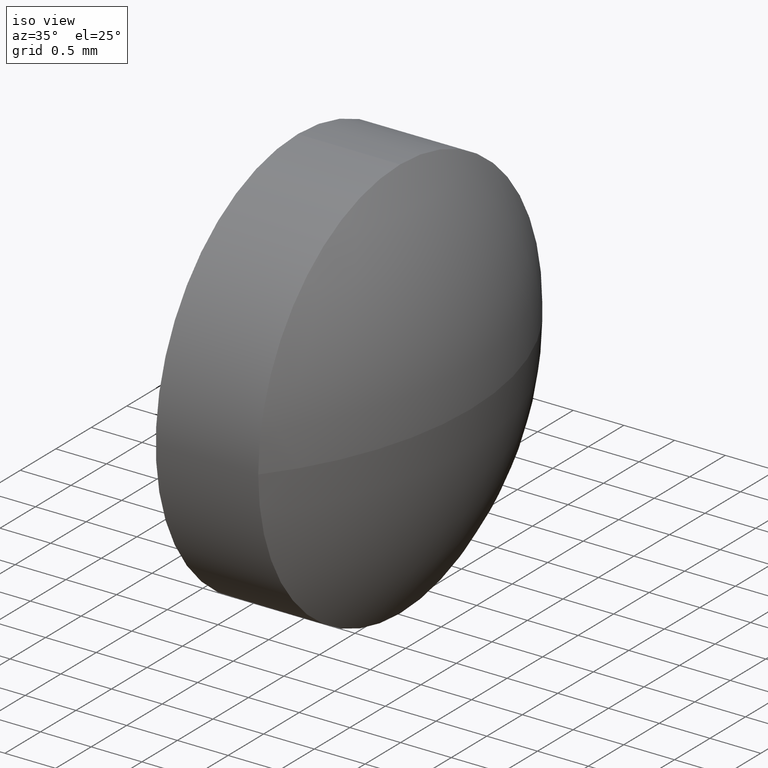
[diagram: clean part render]
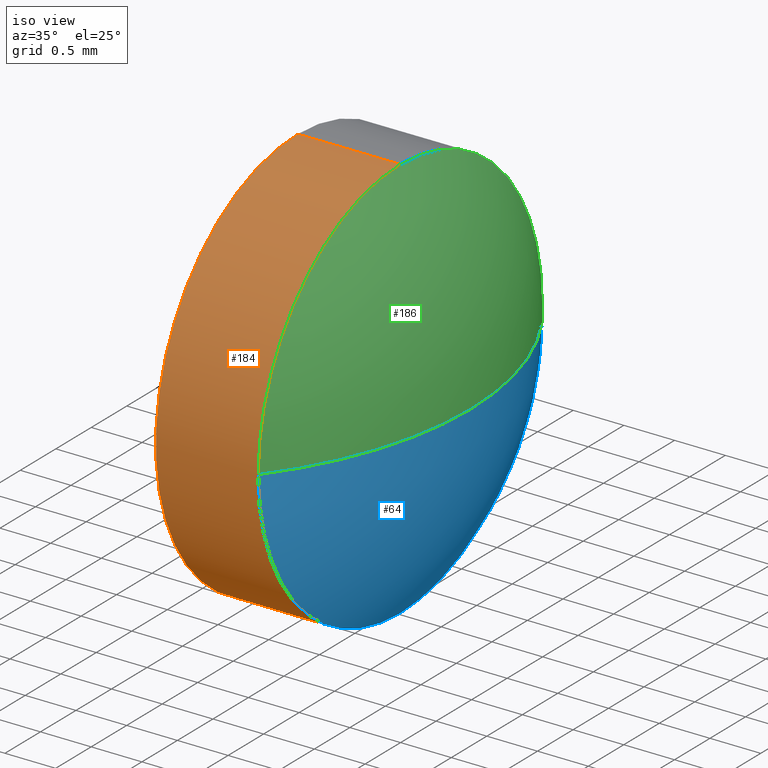
[diagram: same view with three faces highlighted in distinct colors, each labeled with its STEP entity id]
A machine part, iso view with three faces highlighted in distinct colors.
Their STEP definitions:

[orange] entity #184 — the highlighted cylindrical surface (partial cylindrical patch) has radius 2 mm, axis along (-1, -0, -0).
#3 = CYLINDRICAL_SURFACE ( 'NONE', #112, 2.000000000000001800 ) ;
#4 = DIRECTION ( 'NONE',  ( -1.000000000000000000, -0.0000000000000000000, -0.0000000000000000000 ) ) ;
#7 = DIRECTION ( 'NONE',  ( 0.0000000000000000000, 0.0000000000000000000, 1.000000000000000000 ) ) ;
#13 = VERTEX_POINT ( 'NONE', #70 ) ;
#14 = LINE ( 'NONE', #15, #163 ) ;
#15 = CARTESIAN_POINT ( 'NONE',  ( 504.7499832645277100, -76.13347349802080500, -2.000000000000001800 ) ) ;
#18 = EDGE_CURVE ( 'NONE', #13, #98, #126, .T. ) ;
#26 = AXIS2_PLACEMENT_3D ( 'NONE', #151, #127, #60 ) ;
#27 = CARTESIAN_POINT ( 'NONE',  ( 506.1898674013084500, -76.13347349802080500, 2.000000000000001800 ) ) ;
#31 = FACE_OUTER_BOUND ( 'NONE', #128, .T. ) ;
#42 = CIRCLE ( 'NONE', #26, 2.000000000000001800 ) ;
#45 = VERTEX_POINT ( 'NONE', #120 ) ;
#46 = CARTESIAN_POINT ( 'NONE',  ( 505.1798674013084000, -76.13347349802080500, -2.000000000000001800 ) ) ;
#48 = DIRECTION ( 'NONE',  ( -1.000000000000000000, -0.0000000000000000000, -0.0000000000000000000 ) ) ;
#49 = EDGE_CURVE ( 'NONE', #88, #160, #14, .T. ) ;
#51 = CARTESIAN_POINT ( 'NONE',  ( 504.7499832645277100, -76.13347349802080500, 0.0000000000000000000 ) ) ;
#60 = DIRECTION ( 'NONE',  ( 0.0000000000000000000, 0.0000000000000000000, 1.000000000000000000 ) ) ;
#65 = AXIS2_PLACEMENT_3D ( 'NONE', #162, #147, #174 ) ;
#70 = CARTESIAN_POINT ( 'NONE',  ( 506.1898674013084500, -78.13347349802080500, -2.449293598294705900E-016 ) ) ;
#73 = ORIENTED_EDGE ( 'NONE', *, *, #18, .T. ) ;
#76 = CARTESIAN_POINT ( 'NONE',  ( 505.1798674013084000, -76.13347349802080500, 0.0000000000000000000 ) ) ;
#79 = ORIENTED_EDGE ( 'NONE', *, *, #182, .T. ) ;
#82 = ORIENTED_EDGE ( 'NONE', *, *, #130, .T. ) ;
#88 = VERTEX_POINT ( 'NONE', #119 ) ;
#96 = DIRECTION ( 'NONE',  ( -1.000000000000000000, -0.0000000000000000000, -0.0000000000000000000 ) ) ;
#97 = DIRECTION ( 'NONE',  ( -1.000000000000000000, -0.0000000000000000000, -0.0000000000000000000 ) ) ;
#98 = VERTEX_POINT ( 'NONE', #27 ) ;
#108 = DIRECTION ( 'NONE',  ( 0.0000000000000000000, 0.0000000000000000000, 1.000000000000000000 ) ) ;
#110 = LINE ( 'NONE', #139, #113 ) ;
#112 = AXIS2_PLACEMENT_3D ( 'NONE', #51, #48, #7 ) ;
#113 = VECTOR ( 'NONE', #97, 1000.000000000000000 ) ;
#115 = CIRCLE ( 'NONE', #136, 2.000000000000001800 ) ;
#119 = CARTESIAN_POINT ( 'NONE',  ( 506.1898674013084500, -76.13347349802080500, -2.000000000000001800 ) ) ;
#120 = CARTESIAN_POINT ( 'NONE',  ( 505.1798674013084000, -76.13347349802080500, 2.000000000000001800 ) ) ;
#126 = CIRCLE ( 'NONE', #65, 2.000000000000001800 ) ;
#127 = DIRECTION ( 'NONE',  ( -1.000000000000000000, -0.0000000000000000000, -0.0000000000000000000 ) ) ;
#128 = EDGE_LOOP ( 'NONE', ( #156, #79, #73, #82, #142 ) ) ;
#130 = EDGE_CURVE ( 'NONE', #98, #45, #110, .T. ) ;
#136 = AXIS2_PLACEMENT_3D ( 'NONE', #76, #96, #108 ) ;
#139 = CARTESIAN_POINT ( 'NONE',  ( 504.7499832645277100, -76.13347349802080500, 2.000000000000001800 ) ) ;
#142 = ORIENTED_EDGE ( 'NONE', *, *, #180, .F. ) ;
#147 = DIRECTION ( 'NONE',  ( -1.000000000000000000, -0.0000000000000000000, -0.0000000000000000000 ) ) ;
#151 = CARTESIAN_POINT ( 'NONE',  ( 506.1898674013084500, -76.13347349802080500, 0.0000000000000000000 ) ) ;
#156 = ORIENTED_EDGE ( 'NONE', *, *, #49, .F. ) ;
#160 = VERTEX_POINT ( 'NONE', #46 ) ;
#162 = CARTESIAN_POINT ( 'NONE',  ( 506.1898674013084500, -76.13347349802080500, 0.0000000000000000000 ) ) ;
#163 = VECTOR ( 'NONE', #4, 1000.000000000000000 ) ;
#174 = DIRECTION ( 'NONE',  ( 0.0000000000000000000, 0.0000000000000000000, 1.000000000000000000 ) ) ;
#180 = EDGE_CURVE ( 'NONE', #160, #45, #115, .T. ) ;
#182 = EDGE_CURVE ( 'NONE', #88, #13, #42, .T. ) ;
#184 = ADVANCED_FACE ( 'NONE', ( #31 ), #3, .T. ) ;

[blue] entity #64 — the highlighted spherical surface has radius 3.2436 mm.
#1 = CIRCLE ( 'NONE', #6, 3.243550724637778200 ) ;
#2 = CIRCLE ( 'NONE', #41, 2.000000000000001800 ) ;
#6 = AXIS2_PLACEMENT_3D ( 'NONE', #75, #140, #179 ) ;
#8 = FACE_OUTER_BOUND ( 'NONE', #152, .T. ) ;
#11 = VERTEX_POINT ( 'NONE', #55 ) ;
#13 = VERTEX_POINT ( 'NONE', #70 ) ;
#23 = DIRECTION ( 'NONE',  ( 1.000000000000000000, 0.0000000000000000000, 0.0000000000000000000 ) ) ;
#26 = AXIS2_PLACEMENT_3D ( 'NONE', #151, #127, #60 ) ;
#29 = CARTESIAN_POINT ( 'NONE',  ( 506.1898674013084500, -76.13347349802080500, 0.0000000000000000000 ) ) ;
#32 = DIRECTION ( 'NONE',  ( -0.0000000000000000000, 0.0000000000000000000, 1.000000000000000000 ) ) ;
#37 = SPHERICAL_SURFACE ( 'NONE', #133, 3.243550724637780800 ) ;
#41 = AXIS2_PLACEMENT_3D ( 'NONE', #29, #103, #58 ) ;
#42 = CIRCLE ( 'NONE', #26, 2.000000000000001800 ) ;
#44 = CARTESIAN_POINT ( 'NONE',  ( 503.6363166766706200, -76.13347349802080500, 0.0000000000000000000 ) ) ;
#55 = CARTESIAN_POINT ( 'NONE',  ( 506.1898674013084500, -74.13347349802079100, 0.0000000000000000000 ) ) ;
#58 = DIRECTION ( 'NONE',  ( 0.0000000000000000000, 0.0000000000000000000, 1.000000000000000000 ) ) ;
#60 = DIRECTION ( 'NONE',  ( 0.0000000000000000000, 0.0000000000000000000, 1.000000000000000000 ) ) ;
#64 = ADVANCED_FACE ( 'NONE', ( #8 ), #37, .T. ) ;
#66 = CIRCLE ( 'NONE', #114, 3.243550724637778200 ) ;
#70 = CARTESIAN_POINT ( 'NONE',  ( 506.1898674013084500, -78.13347349802080500, -2.449293598294705900E-016 ) ) ;
#71 = DIRECTION ( 'NONE',  ( -0.0000000000000000000, 0.0000000000000000000, -1.000000000000000000 ) ) ;
#75 = CARTESIAN_POINT ( 'NONE',  ( 503.6363166766706200, -76.13347349802080500, 0.0000000000000000000 ) ) ;
#85 = ORIENTED_EDGE ( 'NONE', *, *, #182, .F. ) ;
#88 = VERTEX_POINT ( 'NONE', #119 ) ;
#91 = VERTEX_POINT ( 'NONE', #176 ) ;
#99 = ORIENTED_EDGE ( 'NONE', *, *, #173, .F. ) ;
#103 = DIRECTION ( 'NONE',  ( -1.000000000000000000, -0.0000000000000000000, -0.0000000000000000000 ) ) ;
#106 = CARTESIAN_POINT ( 'NONE',  ( 503.6363166766706200, -76.13347349802080500, 0.0000000000000000000 ) ) ;
#114 = AXIS2_PLACEMENT_3D ( 'NONE', #106, #32, #23 ) ;
#119 = CARTESIAN_POINT ( 'NONE',  ( 506.1898674013084500, -76.13347349802080500, -2.000000000000001800 ) ) ;
#127 = DIRECTION ( 'NONE',  ( -1.000000000000000000, -0.0000000000000000000, -0.0000000000000000000 ) ) ;
#129 = EDGE_CURVE ( 'NONE', #91, #13, #1, .T. ) ;
#133 = AXIS2_PLACEMENT_3D ( 'NONE', #44, #71, #135 ) ;
#135 = DIRECTION ( 'NONE',  ( 0.0000000000000000000, 1.000000000000000000, 0.0000000000000000000 ) ) ;
#140 = DIRECTION ( 'NONE',  ( 0.0000000000000000000, 1.224646799147353200E-016, -1.000000000000000000 ) ) ;
#151 = CARTESIAN_POINT ( 'NONE',  ( 506.1898674013084500, -76.13347349802080500, 0.0000000000000000000 ) ) ;
#152 = EDGE_LOOP ( 'NONE', ( #99, #177, #85, #157 ) ) ;
#157 = ORIENTED_EDGE ( 'NONE', *, *, #164, .F. ) ;
#164 = EDGE_CURVE ( 'NONE', #11, #88, #2, .T. ) ;
#173 = EDGE_CURVE ( 'NONE', #91, #11, #66, .T. ) ;
#176 = CARTESIAN_POINT ( 'NONE',  ( 506.8798674013083900, -76.13347349802080500, 0.0000000000000000000 ) ) ;
#177 = ORIENTED_EDGE ( 'NONE', *, *, #129, .T. ) ;
#179 = DIRECTION ( 'NONE',  ( 0.0000000000000000000, 1.000000000000000000, 1.224646799147354200E-016 ) ) ;
#182 = EDGE_CURVE ( 'NONE', #88, #13, #42, .T. ) ;

[green] entity #186 — the highlighted spherical surface has radius 3.2436 mm.
#1 = CIRCLE ( 'NONE', #6, 3.243550724637778200 ) ;
#5 = CARTESIAN_POINT ( 'NONE',  ( 506.1898674013084500, -76.13347349802080500, 0.0000000000000000000 ) ) ;
#6 = AXIS2_PLACEMENT_3D ( 'NONE', #75, #140, #179 ) ;
#9 = DIRECTION ( 'NONE',  ( 0.0000000000000000000, 1.000000000000000000, 0.0000000000000000000 ) ) ;
#11 = VERTEX_POINT ( 'NONE', #55 ) ;
#13 = VERTEX_POINT ( 'NONE', #70 ) ;
#18 = EDGE_CURVE ( 'NONE', #13, #98, #126, .T. ) ;
#23 = DIRECTION ( 'NONE',  ( 1.000000000000000000, 0.0000000000000000000, 0.0000000000000000000 ) ) ;
#24 = EDGE_LOOP ( 'NONE', ( #50, #134, #117, #67 ) ) ;
#25 = AXIS2_PLACEMENT_3D ( 'NONE', #5, #30, #105 ) ;
#27 = CARTESIAN_POINT ( 'NONE',  ( 506.1898674013084500, -76.13347349802080500, 2.000000000000001800 ) ) ;
#30 = DIRECTION ( 'NONE',  ( -1.000000000000000000, -0.0000000000000000000, -0.0000000000000000000 ) ) ;
#32 = DIRECTION ( 'NONE',  ( -0.0000000000000000000, 0.0000000000000000000, 1.000000000000000000 ) ) ;
#33 = CARTESIAN_POINT ( 'NONE',  ( 503.6363166766706200, -76.13347349802080500, 0.0000000000000000000 ) ) ;
#34 = AXIS2_PLACEMENT_3D ( 'NONE', #33, #78, #9 ) ;
#50 = ORIENTED_EDGE ( 'NONE', *, *, #129, .F. ) ;
#55 = CARTESIAN_POINT ( 'NONE',  ( 506.1898674013084500, -74.13347349802079100, 0.0000000000000000000 ) ) ;
#61 = SPHERICAL_SURFACE ( 'NONE', #34, 3.243550724637780800 ) ;
#65 = AXIS2_PLACEMENT_3D ( 'NONE', #162, #147, #174 ) ;
#66 = CIRCLE ( 'NONE', #114, 3.243550724637778200 ) ;
#67 = ORIENTED_EDGE ( 'NONE', *, *, #18, .F. ) ;
#69 = CIRCLE ( 'NONE', #25, 2.000000000000001800 ) ;
#70 = CARTESIAN_POINT ( 'NONE',  ( 506.1898674013084500, -78.13347349802080500, -2.449293598294705900E-016 ) ) ;
#75 = CARTESIAN_POINT ( 'NONE',  ( 503.6363166766706200, -76.13347349802080500, 0.0000000000000000000 ) ) ;
#78 = DIRECTION ( 'NONE',  ( -0.0000000000000000000, 0.0000000000000000000, -1.000000000000000000 ) ) ;
#91 = VERTEX_POINT ( 'NONE', #176 ) ;
#98 = VERTEX_POINT ( 'NONE', #27 ) ;
#105 = DIRECTION ( 'NONE',  ( 0.0000000000000000000, 0.0000000000000000000, 1.000000000000000000 ) ) ;
#106 = CARTESIAN_POINT ( 'NONE',  ( 503.6363166766706200, -76.13347349802080500, 0.0000000000000000000 ) ) ;
#114 = AXIS2_PLACEMENT_3D ( 'NONE', #106, #32, #23 ) ;
#117 = ORIENTED_EDGE ( 'NONE', *, *, #143, .F. ) ;
#118 = FACE_OUTER_BOUND ( 'NONE', #24, .T. ) ;
#126 = CIRCLE ( 'NONE', #65, 2.000000000000001800 ) ;
#129 = EDGE_CURVE ( 'NONE', #91, #13, #1, .T. ) ;
#134 = ORIENTED_EDGE ( 'NONE', *, *, #173, .T. ) ;
#140 = DIRECTION ( 'NONE',  ( 0.0000000000000000000, 1.224646799147353200E-016, -1.000000000000000000 ) ) ;
#143 = EDGE_CURVE ( 'NONE', #98, #11, #69, .T. ) ;
#147 = DIRECTION ( 'NONE',  ( -1.000000000000000000, -0.0000000000000000000, -0.0000000000000000000 ) ) ;
#162 = CARTESIAN_POINT ( 'NONE',  ( 506.1898674013084500, -76.13347349802080500, 0.0000000000000000000 ) ) ;
#173 = EDGE_CURVE ( 'NONE', #91, #11, #66, .T. ) ;
#174 = DIRECTION ( 'NONE',  ( 0.0000000000000000000, 0.0000000000000000000, 1.000000000000000000 ) ) ;
#176 = CARTESIAN_POINT ( 'NONE',  ( 506.8798674013083900, -76.13347349802080500, 0.0000000000000000000 ) ) ;
#179 = DIRECTION ( 'NONE',  ( 0.0000000000000000000, 1.000000000000000000, 1.224646799147354200E-016 ) ) ;
#186 = ADVANCED_FACE ( 'NONE', ( #118 ), #61, .T. ) ;